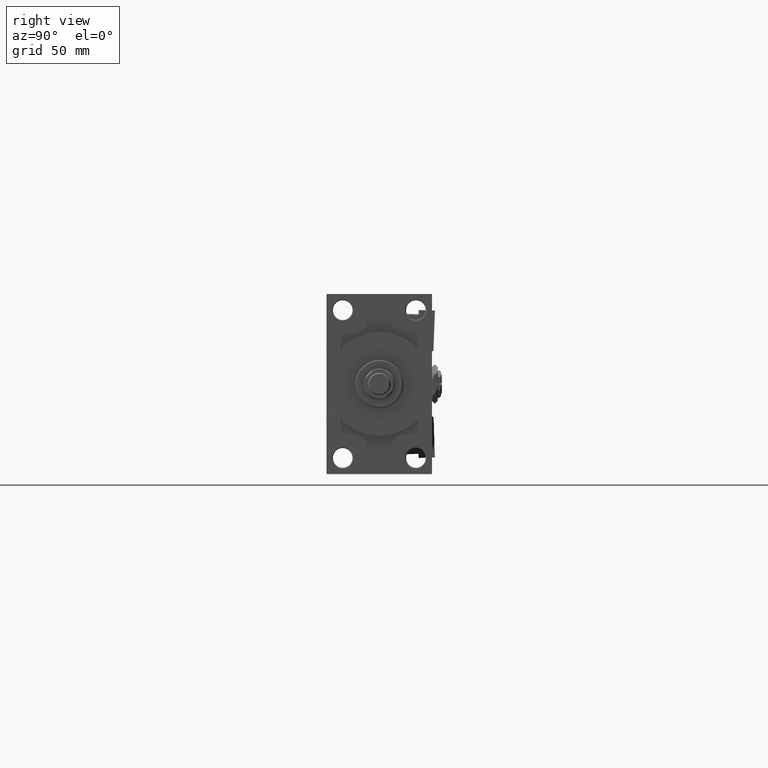
[diagram: clean part render]
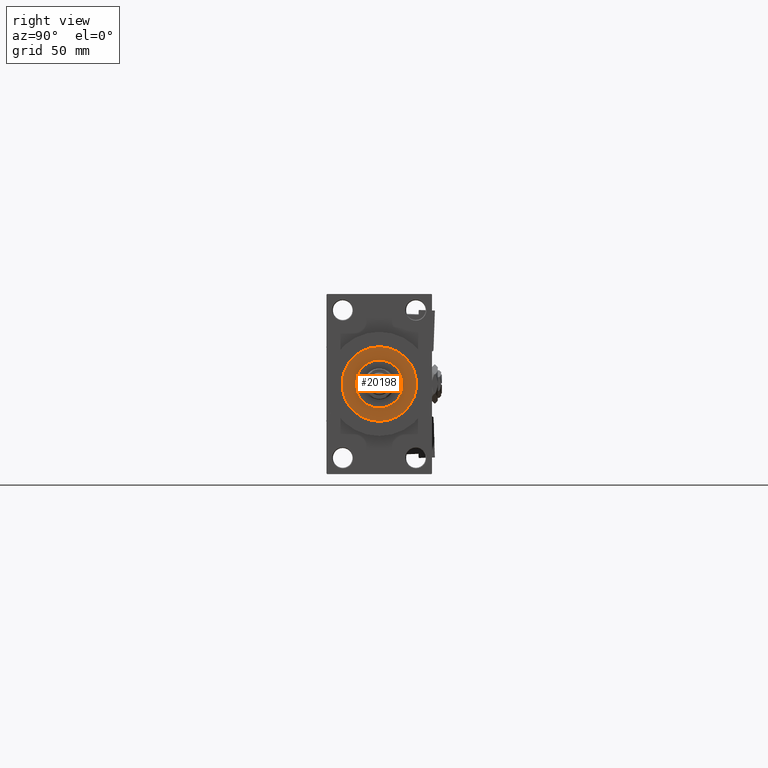
[diagram: same view with one face highlighted and labeled with its STEP entity id]
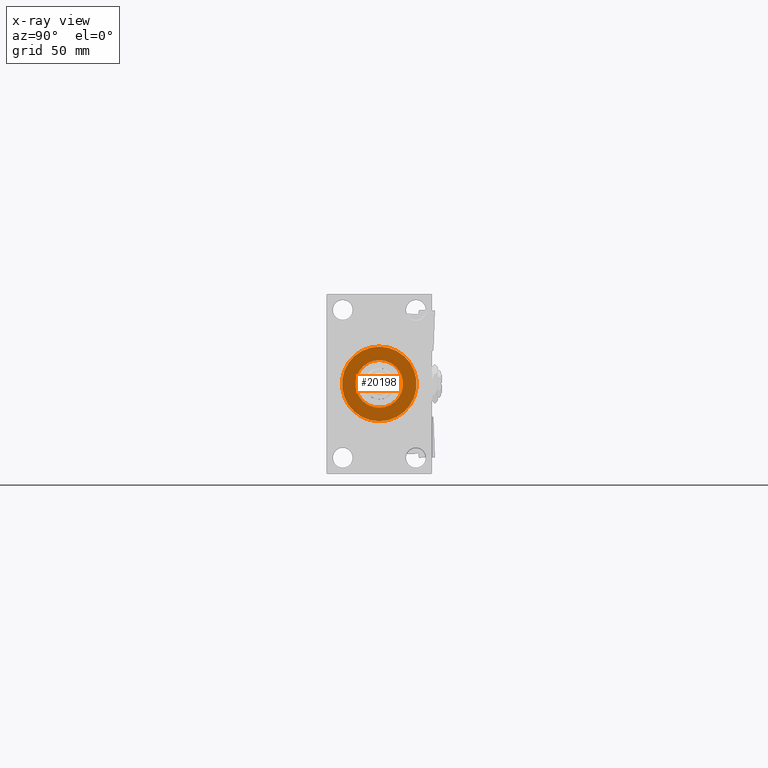
[diagram: x-ray of the same camera — body ghosted, the highlighted face saturated]
A machine part, right view. The second image highlights one B-rep face of the part: STEP entity #20198.
The next image is the same camera in x-ray: the body ghosted, the highlighted face saturated — about 0% of this face is hidden behind the body in this view.
In plain terms, the highlighted planar face has unit normal (1, -0, -0).
Its self-contained STEP definition (entity closure, byte-faithful):
#1612 = CIRCLE ( 'NONE', #30910, 26.50000000000000355 ) ;
#4480 = DIRECTION ( 'NONE',  ( 1.000000000000000000, 0.000000000000000000, 0.000000000000000000 ) ) ;
#4956 = VERTEX_POINT ( 'NONE', #15018 ) ;
#5209 = EDGE_LOOP ( 'NONE', ( #20447, #15700 ) ) ;
#5969 = EDGE_CURVE ( 'NONE', #42206, #26227, #1612, .T. ) ;
#10336 = CIRCLE ( 'NONE', #39663, 26.50000000000000355 ) ;
#11522 = AXIS2_PLACEMENT_3D ( 'NONE', #39671, #39929, #4480 ) ;
#12658 = CARTESIAN_POINT ( 'NONE',  ( 0.000000000000000000, 0.000000000000000000, 43.25999999999999801 ) ) ;
#12745 = AXIS2_PLACEMENT_3D ( 'NONE', #41696, #14105, #15563 ) ;
#14105 = DIRECTION ( 'NONE',  ( 0.000000000000000000, 0.000000000000000000, 1.000000000000000000 ) ) ;
#15018 = CARTESIAN_POINT ( 'NONE',  ( -17.00000000000000000, 0.000000000000000000, 43.25999999999999801 ) ) ;
#15563 = DIRECTION ( 'NONE',  ( 1.000000000000000000, 0.000000000000000000, -0.000000000000000000 ) ) ;
#15700 = ORIENTED_EDGE ( 'NONE', *, *, #33084, .F. ) ;
#16249 = CARTESIAN_POINT ( 'NONE',  ( 0.000000000000000000, 0.000000000000000000, 43.25999999999999801 ) ) ;
#16787 = DIRECTION ( 'NONE',  ( 0.000000000000000000, 0.000000000000000000, 1.000000000000000000 ) ) ;
#16929 = CARTESIAN_POINT ( 'NONE',  ( -26.50000000000000355, 0.000000000000000000, 43.25999999999999801 ) ) ;
#20198 = ADVANCED_FACE ( 'NONE', ( #21222, #33544 ), #29603, .T. ) ;
#20447 = ORIENTED_EDGE ( 'NONE', *, *, #37188, .F. ) ;
#21222 = FACE_BOUND ( 'NONE', #5209, .T. ) ;
#22470 = CARTESIAN_POINT ( 'NONE',  ( 0.000000000000000000, 0.000000000000000000, 43.25999999999999801 ) ) ;
#23380 = CIRCLE ( 'NONE', #41046, 17.00000000000000000 ) ;
#26227 = VERTEX_POINT ( 'NONE', #45506 ) ;
#28313 = DIRECTION ( 'NONE',  ( 1.000000000000000000, 0.000000000000000000, 0.000000000000000000 ) ) ;
#29603 = PLANE ( 'NONE',  #12745 ) ;
#29823 = EDGE_LOOP ( 'NONE', ( #36759, #40650 ) ) ;
#30910 = AXIS2_PLACEMENT_3D ( 'NONE', #12658, #36287, #36813 ) ;
#33084 = EDGE_CURVE ( 'NONE', #45466, #4956, #33334, .T. ) ;
#33334 = CIRCLE ( 'NONE', #11522, 17.00000000000000000 ) ;
#33544 = FACE_OUTER_BOUND ( 'NONE', #29823, .T. ) ;
#34796 = DIRECTION ( 'NONE',  ( 0.000000000000000000, 0.000000000000000000, 1.000000000000000000 ) ) ;
#36287 = DIRECTION ( 'NONE',  ( 0.000000000000000000, 0.000000000000000000, 1.000000000000000000 ) ) ;
#36759 = ORIENTED_EDGE ( 'NONE', *, *, #5969, .T. ) ;
#36813 = DIRECTION ( 'NONE',  ( 1.000000000000000000, 0.000000000000000000, 0.000000000000000000 ) ) ;
#37188 = EDGE_CURVE ( 'NONE', #4956, #45466, #23380, .T. ) ;
#38494 = DIRECTION ( 'NONE',  ( 1.000000000000000000, 0.000000000000000000, 0.000000000000000000 ) ) ;
#39663 = AXIS2_PLACEMENT_3D ( 'NONE', #16249, #16787, #28313 ) ;
#39671 = CARTESIAN_POINT ( 'NONE',  ( 0.000000000000000000, 0.000000000000000000, 43.25999999999999801 ) ) ;
#39929 = DIRECTION ( 'NONE',  ( 0.000000000000000000, 0.000000000000000000, 1.000000000000000000 ) ) ;
#40650 = ORIENTED_EDGE ( 'NONE', *, *, #47764, .T. ) ;
#41046 = AXIS2_PLACEMENT_3D ( 'NONE', #22470, #34796, #38494 ) ;
#41696 = CARTESIAN_POINT ( 'NONE',  ( 0.000000000000000000, 0.000000000000000000, 43.25999999999999801 ) ) ;
#42155 = CARTESIAN_POINT ( 'NONE',  ( 17.00000000000000000, 2.081899558550500280E-15, 43.25999999999999801 ) ) ;
#42206 = VERTEX_POINT ( 'NONE', #16929 ) ;
#45466 = VERTEX_POINT ( 'NONE', #42155 ) ;
#45506 = CARTESIAN_POINT ( 'NONE',  ( 26.50000000000000355, 3.245314017740486554E-15, 43.25999999999999801 ) ) ;
#47764 = EDGE_CURVE ( 'NONE', #26227, #42206, #10336, .T. ) ;